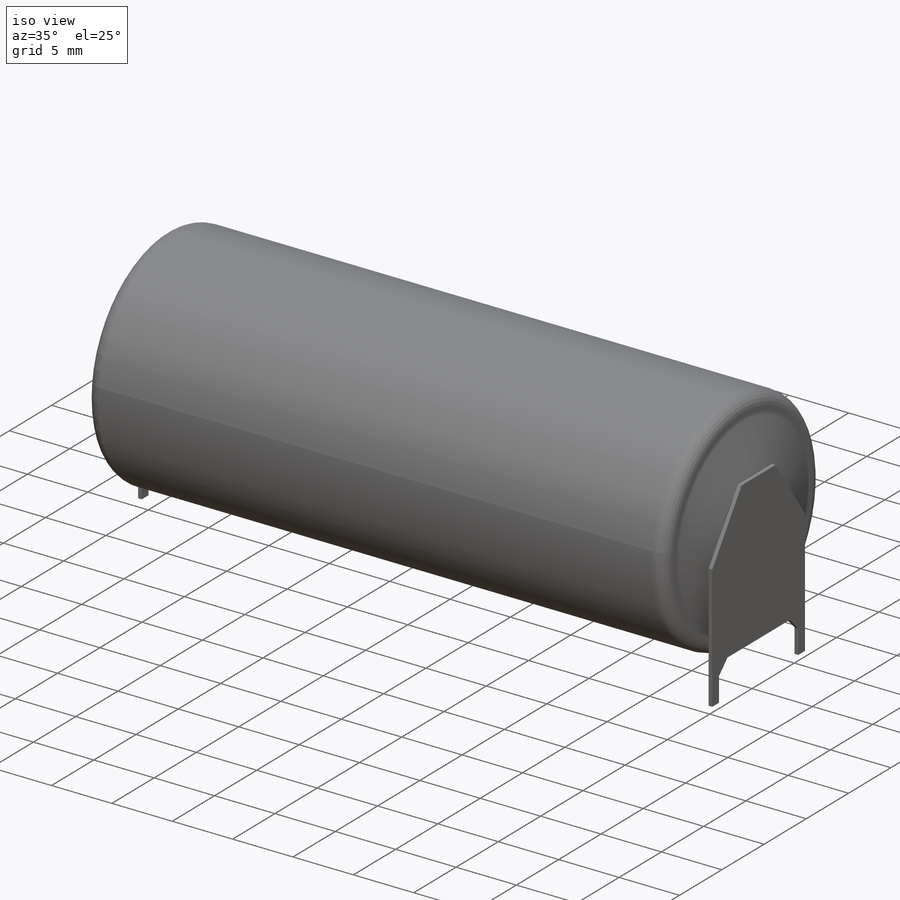
[diagram: iso view]
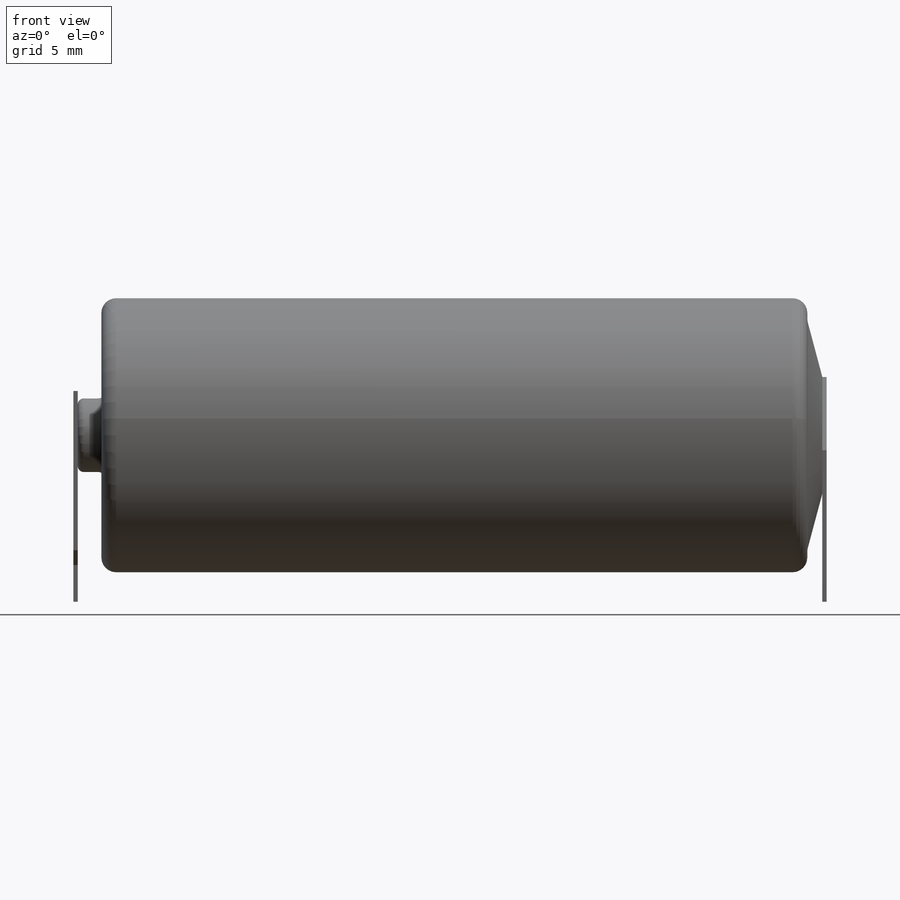
[diagram: front view]
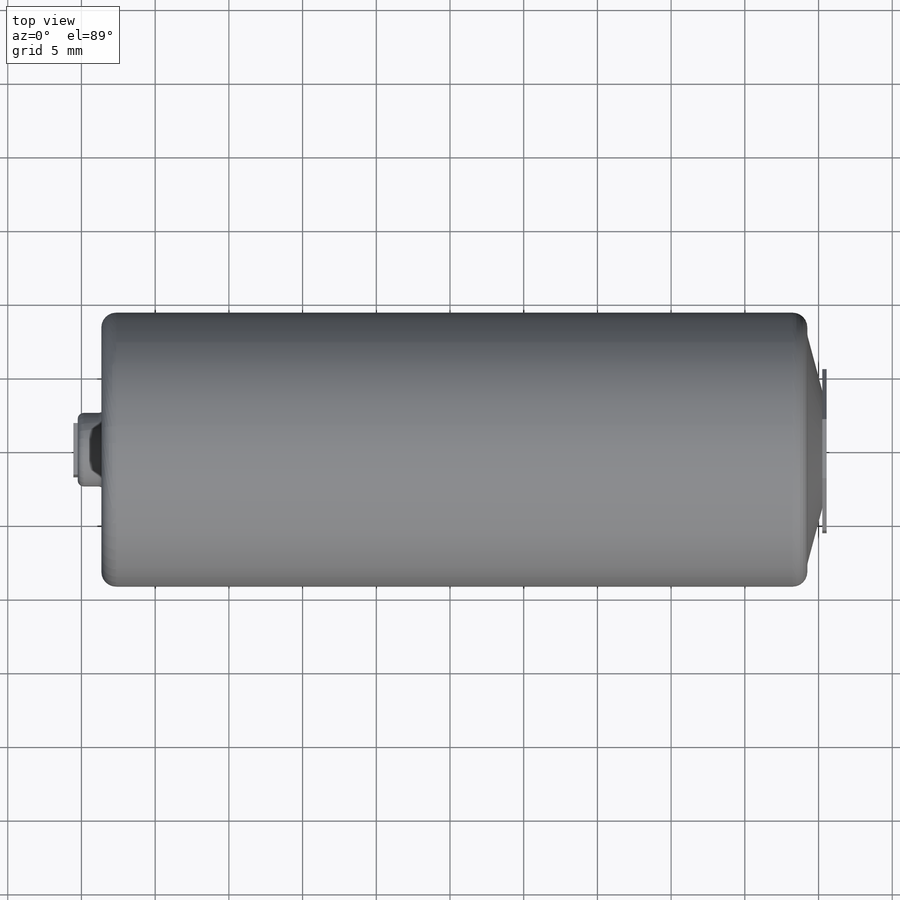
[diagram: top view]
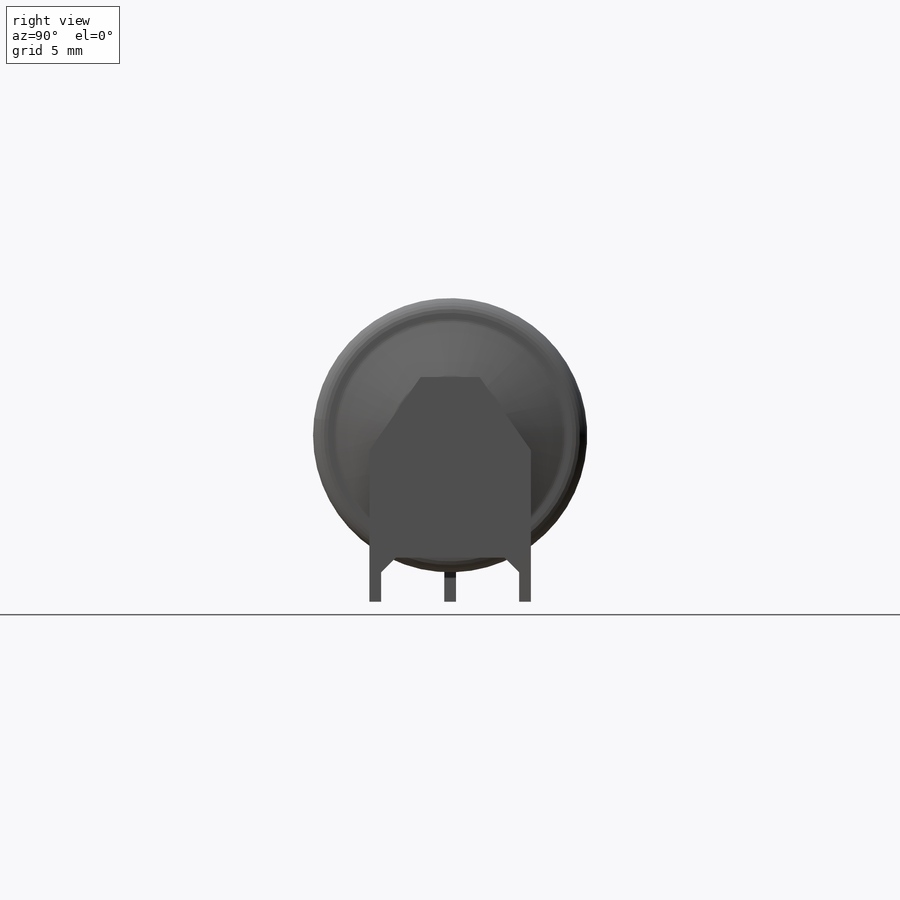
[diagram: right view]
SOLIDWORKS PART (.sldprt)
format: sldprt  version: not decoded by parser v0  size: 452,096 bytes
history: native  units: mm
features: sketch x3, extrude x2, material x1, revolve x1 (+12 scaffold rows collapsed)
feature tree (19):
  scaffold x12  (default folders/planes/origin — collapsed)
  material  "Material <not specified>"
  sketch  "Sketch1"  dims[c1.D8=0.5mm c1.D4=1.0mm c1.D5=1.0mm c1.D16=0.4mm c1.D17=0.1mm c1.D1=0.8mm c1.D2=0.8mm c1.D3=~3.796938mm c2.D3=20.0deg c2.D4=8.0mm c2.D5=8.75mm c3.D3=2.0mm c3.D4=0.5mm c3.D6=4.0mm c3.D7=1.0mm c3.D8=0.5mm c3.D9=0.5mm c3.D10=2.5mm c3.D11=4.25mm c3.D12=1.6mm c3.D13=0.3mm c3.D14=50.5mm c4.D3=~3.302069mm c5.D3=15.0deg c5.D4=1.0mm c5.D7=2.0mm c5.D8=9.3mm c5.D15=0.4mm c5.D18=3.0mm c5.D19=25.1mm c5.D20=25.9mm c6.D19=1.5mm c6.D18=0.5mm]
  revolve  "Revolve1"  Angle=360deg
  sketch  "Sketch2"  dims[c1.D1=2.0mm c1.D2=3.0mm c1.D3=10.16mm c1.D4=0.8mm c1.D5=~1.690591mm c2.D5=45.0deg c2.D6=1.0mm c2.D7=4.0mm c2.D8=2.625mm c3.D8=35.0deg c3.D9=4.0mm c3.D1=2.0mm c3.D2=1.0mm c3.D6=~1.248233mm c4.D6=45.0deg c5.D6=1.0mm]
  extrude  "Boss-Extrude1"  Depth=0.3mm
  sketch  "Sketch3"  dims[D1=3.0mm D2=3.5mm D3=0.8mm D4=2.5mm D5=1.0mm]
  extrude  "Boss-Extrude2"  Depth=0.3mm
decode coverage: 6 of 6 modeling features carry decoded parameters
note: ~ marks probable driven/reference dimensions
note: suppression state not decoded; provenance and decode notes live in map.json
